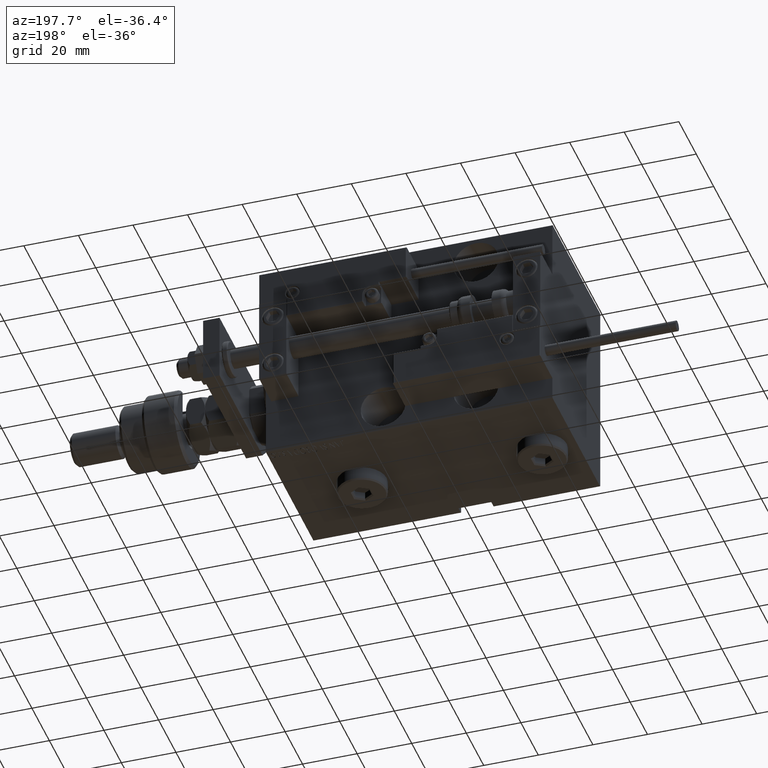
[diagram: clean part render]
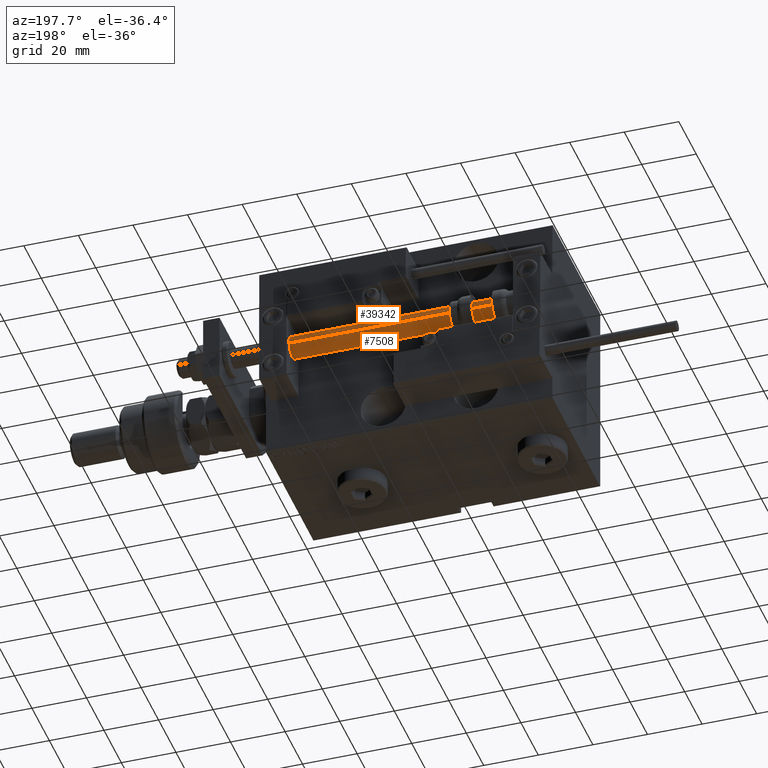
[diagram: same view with one multi-face feature highlighted, each face labeled with its STEP entity id]
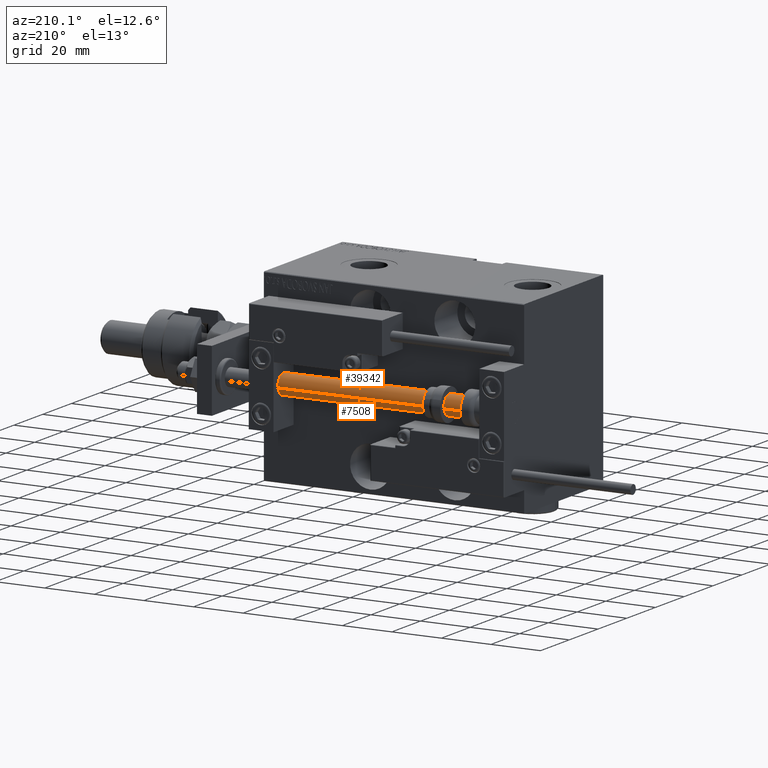
[diagram: same view with one multi-face feature highlighted, each face labeled with its STEP entity id]
A machine part, auxiliary view. The highlighted faces form ONE feature: a constant-radius fillet chain: 2 tangent blend faces with common blend radius 4 mm. The faces share edges in the B-rep.
A second angle (auxiliary view) of the same feature is appended — it is thin or edge-on in the first view.
Their STEP definitions:
[1] entity #39342 (Cylinder):
#795 = VERTEX_POINT ( 'NONE', #19513 ) ;
#1191 = DIRECTION ( 'NONE',  ( 0.000000000000000000, 0.000000000000000000, 1.000000000000000000 ) ) ;
#3095 = EDGE_CURVE ( 'NONE', #41168, #38744, #27522, .T. ) ;
#3920 = AXIS2_PLACEMENT_3D ( 'NONE', #30907, #20143, #24249 ) ;
#6166 = DIRECTION ( 'NONE',  ( -1.000000000000000000, 0.000000000000000000, 0.000000000000000000 ) ) ;
#7131 = VECTOR ( 'NONE', #19286, 1000.000000000000000 ) ;
#8173 = CARTESIAN_POINT ( 'NONE',  ( -4.000000000000000000, 0.000000000000000000, 2.000000000000029310 ) ) ;
#8188 = EDGE_CURVE ( 'NONE', #795, #38744, #40589, .T. ) ;
#8767 = ORIENTED_EDGE ( 'NONE', *, *, #38753, .F. ) ;
#10006 = CARTESIAN_POINT ( 'NONE',  ( -4.000000000000000000, 0.000000000000000000, 105.0000000000000000 ) ) ;
#10904 = ORIENTED_EDGE ( 'NONE', *, *, #53670, .T. ) ;
#11066 = CYLINDRICAL_SURFACE ( 'NONE', #42803, 4.000000000000000000 ) ;
#13111 = VERTEX_POINT ( 'NONE', #25445 ) ;
#14117 = LINE ( 'NONE', #10006, #33703 ) ;
#15170 = CARTESIAN_POINT ( 'NONE',  ( 0.000000000000000000, 0.000000000000000000, 105.0000000000000000 ) ) ;
#15387 = EDGE_LOOP ( 'NONE', ( #36937, #8767, #10904, #33567 ) ) ;
#19286 = DIRECTION ( 'NONE',  ( -0.000000000000000000, -0.000000000000000000, -1.000000000000000000 ) ) ;
#19513 = CARTESIAN_POINT ( 'NONE',  ( 4.000000000000000000, 4.898587196589412829E-16, 105.0000000000000000 ) ) ;
#20143 = DIRECTION ( 'NONE',  ( -0.000000000000000000, -0.000000000000000000, 1.000000000000000000 ) ) ;
#24249 = DIRECTION ( 'NONE',  ( 1.000000000000000000, 0.000000000000000000, 0.000000000000000000 ) ) ;
#25445 = CARTESIAN_POINT ( 'NONE',  ( -4.000000000000000000, 0.000000000000000000, 105.0000000000000000 ) ) ;
#26664 = FACE_OUTER_BOUND ( 'NONE', #15387, .T. ) ;
#26693 = DIRECTION ( 'NONE',  ( -0.000000000000000000, -0.000000000000000000, -1.000000000000000000 ) ) ;
#27522 = CIRCLE ( 'NONE', #3920, 4.000000000000000000 ) ;
#30907 = CARTESIAN_POINT ( 'NONE',  ( 0.000000000000000000, 0.000000000000000000, 2.000000000000029310 ) ) ;
#31328 = CARTESIAN_POINT ( 'NONE',  ( 4.000000000000000000, 4.898587196589412829E-16, 105.0000000000000000 ) ) ;
#32267 = AXIS2_PLACEMENT_3D ( 'NONE', #38675, #1191, #34857 ) ;
#33567 = ORIENTED_EDGE ( 'NONE', *, *, #3095, .T. ) ;
#33703 = VECTOR ( 'NONE', #26693, 1000.000000000000000 ) ;
#34857 = DIRECTION ( 'NONE',  ( 1.000000000000000000, 0.000000000000000000, 0.000000000000000000 ) ) ;
#35817 = CIRCLE ( 'NONE', #32267, 4.000000000000000000 ) ;
#36937 = ORIENTED_EDGE ( 'NONE', *, *, #8188, .F. ) ;
#38675 = CARTESIAN_POINT ( 'NONE',  ( 0.000000000000000000, 0.000000000000000000, 105.0000000000000000 ) ) ;
#38744 = VERTEX_POINT ( 'NONE', #47411 ) ;
#38753 = EDGE_CURVE ( 'NONE', #13111, #795, #35817, .T. ) ;
#39342 = ADVANCED_FACE ( 'NONE', ( #26664 ), #11066, .T. ) ;
#40589 = LINE ( 'NONE', #31328, #7131 ) ;
#41168 = VERTEX_POINT ( 'NONE', #8173 ) ;
#42803 = AXIS2_PLACEMENT_3D ( 'NONE', #15170, #47726, #6166 ) ;
#47411 = CARTESIAN_POINT ( 'NONE',  ( 4.000000000000000000, 4.898587196589412829E-16, 2.000000000000029310 ) ) ;
#47726 = DIRECTION ( 'NONE',  ( -0.000000000000000000, -0.000000000000000000, -1.000000000000000000 ) ) ;
#53670 = EDGE_CURVE ( 'NONE', #13111, #41168, #14117, .T. ) ;
[2] entity #7508 (Cylinder):
#795 = VERTEX_POINT ( 'NONE', #19513 ) ;
#2189 = ORIENTED_EDGE ( 'NONE', *, *, #3676, .F. ) ;
#2224 = AXIS2_PLACEMENT_3D ( 'NONE', #34282, #43012, #42475 ) ;
#3526 = EDGE_CURVE ( 'NONE', #38744, #41168, #24079, .T. ) ;
#3676 = EDGE_CURVE ( 'NONE', #795, #13111, #31919, .T. ) ;
#7131 = VECTOR ( 'NONE', #19286, 1000.000000000000000 ) ;
#7508 = ADVANCED_FACE ( 'NONE', ( #22157 ), #26255, .T. ) ;
#8173 = CARTESIAN_POINT ( 'NONE',  ( -4.000000000000000000, 0.000000000000000000, 2.000000000000029310 ) ) ;
#8188 = EDGE_CURVE ( 'NONE', #795, #38744, #40589, .T. ) ;
#10006 = CARTESIAN_POINT ( 'NONE',  ( -4.000000000000000000, 0.000000000000000000, 105.0000000000000000 ) ) ;
#12338 = DIRECTION ( 'NONE',  ( 1.000000000000000000, 0.000000000000000000, 0.000000000000000000 ) ) ;
#12511 = EDGE_LOOP ( 'NONE', ( #2189, #12771, #29259, #47838 ) ) ;
#12771 = ORIENTED_EDGE ( 'NONE', *, *, #8188, .T. ) ;
#13111 = VERTEX_POINT ( 'NONE', #25445 ) ;
#14117 = LINE ( 'NONE', #10006, #33703 ) ;
#15905 = DIRECTION ( 'NONE',  ( 0.000000000000000000, 0.000000000000000000, 1.000000000000000000 ) ) ;
#19286 = DIRECTION ( 'NONE',  ( -0.000000000000000000, -0.000000000000000000, -1.000000000000000000 ) ) ;
#19513 = CARTESIAN_POINT ( 'NONE',  ( 4.000000000000000000, 4.898587196589412829E-16, 105.0000000000000000 ) ) ;
#21108 = AXIS2_PLACEMENT_3D ( 'NONE', #47305, #30632, #42935 ) ;
#22157 = FACE_OUTER_BOUND ( 'NONE', #12511, .T. ) ;
#24079 = CIRCLE ( 'NONE', #2224, 4.000000000000000000 ) ;
#25445 = CARTESIAN_POINT ( 'NONE',  ( -4.000000000000000000, 0.000000000000000000, 105.0000000000000000 ) ) ;
#26255 = CYLINDRICAL_SURFACE ( 'NONE', #21108, 4.000000000000000000 ) ;
#26693 = DIRECTION ( 'NONE',  ( -0.000000000000000000, -0.000000000000000000, -1.000000000000000000 ) ) ;
#29259 = ORIENTED_EDGE ( 'NONE', *, *, #3526, .T. ) ;
#30632 = DIRECTION ( 'NONE',  ( -0.000000000000000000, -0.000000000000000000, -1.000000000000000000 ) ) ;
#31328 = CARTESIAN_POINT ( 'NONE',  ( 4.000000000000000000, 4.898587196589412829E-16, 105.0000000000000000 ) ) ;
#31919 = CIRCLE ( 'NONE', #46758, 4.000000000000000000 ) ;
#33146 = CARTESIAN_POINT ( 'NONE',  ( 0.000000000000000000, 0.000000000000000000, 105.0000000000000000 ) ) ;
#33703 = VECTOR ( 'NONE', #26693, 1000.000000000000000 ) ;
#34282 = CARTESIAN_POINT ( 'NONE',  ( 0.000000000000000000, 0.000000000000000000, 2.000000000000029310 ) ) ;
#38744 = VERTEX_POINT ( 'NONE', #47411 ) ;
#40589 = LINE ( 'NONE', #31328, #7131 ) ;
#41168 = VERTEX_POINT ( 'NONE', #8173 ) ;
#42475 = DIRECTION ( 'NONE',  ( 1.000000000000000000, 0.000000000000000000, 0.000000000000000000 ) ) ;
#42935 = DIRECTION ( 'NONE',  ( -1.000000000000000000, 0.000000000000000000, 0.000000000000000000 ) ) ;
#43012 = DIRECTION ( 'NONE',  ( -0.000000000000000000, -0.000000000000000000, 1.000000000000000000 ) ) ;
#46758 = AXIS2_PLACEMENT_3D ( 'NONE', #33146, #15905, #12338 ) ;
#47305 = CARTESIAN_POINT ( 'NONE',  ( 0.000000000000000000, 0.000000000000000000, 105.0000000000000000 ) ) ;
#47411 = CARTESIAN_POINT ( 'NONE',  ( 4.000000000000000000, 4.898587196589412829E-16, 2.000000000000029310 ) ) ;
#47838 = ORIENTED_EDGE ( 'NONE', *, *, #53670, .F. ) ;
#53670 = EDGE_CURVE ( 'NONE', #13111, #41168, #14117, .T. ) ;